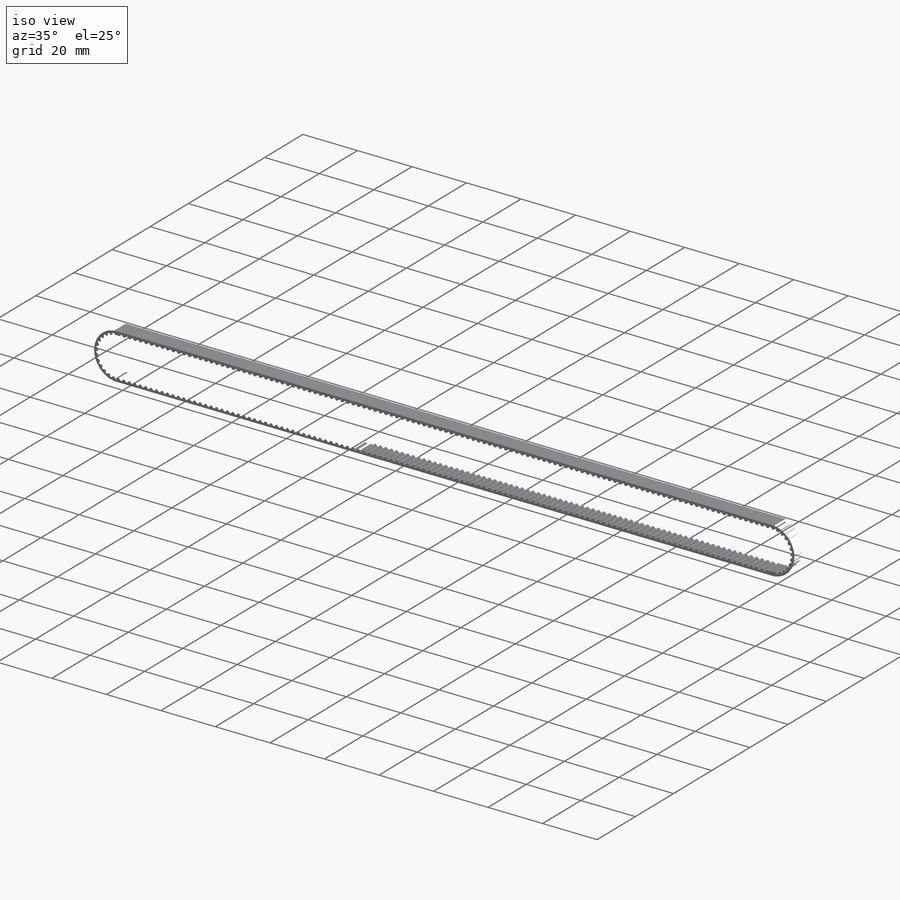
[diagram: iso view]
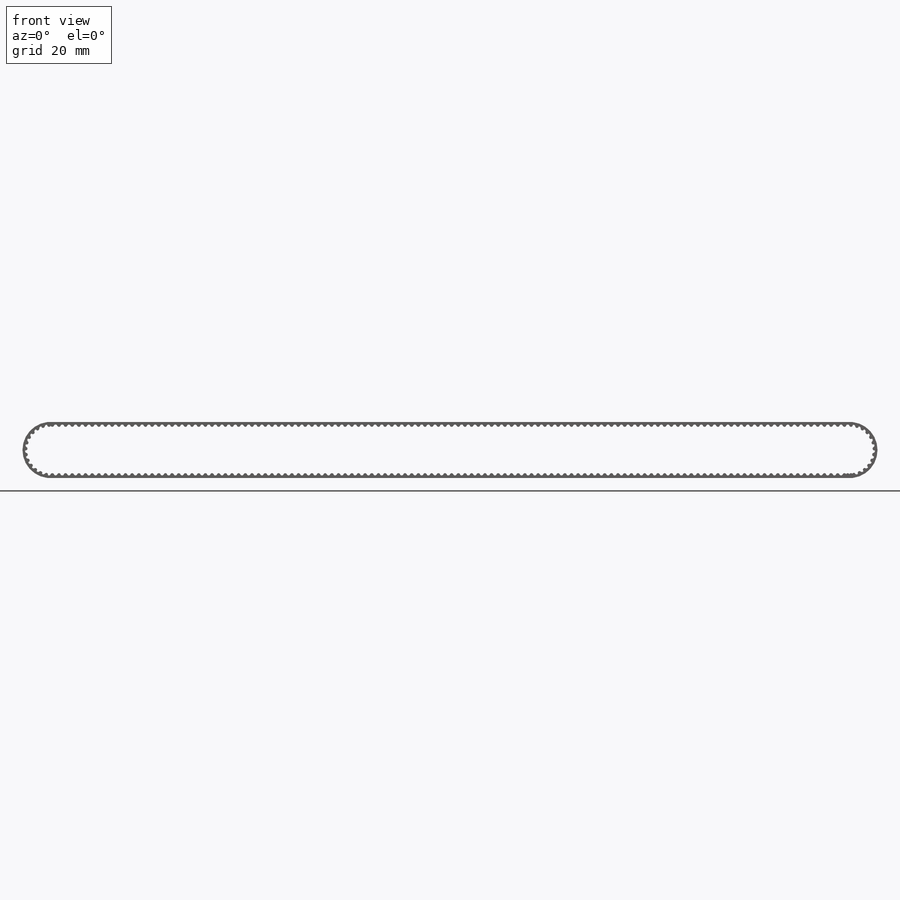
[diagram: front view]
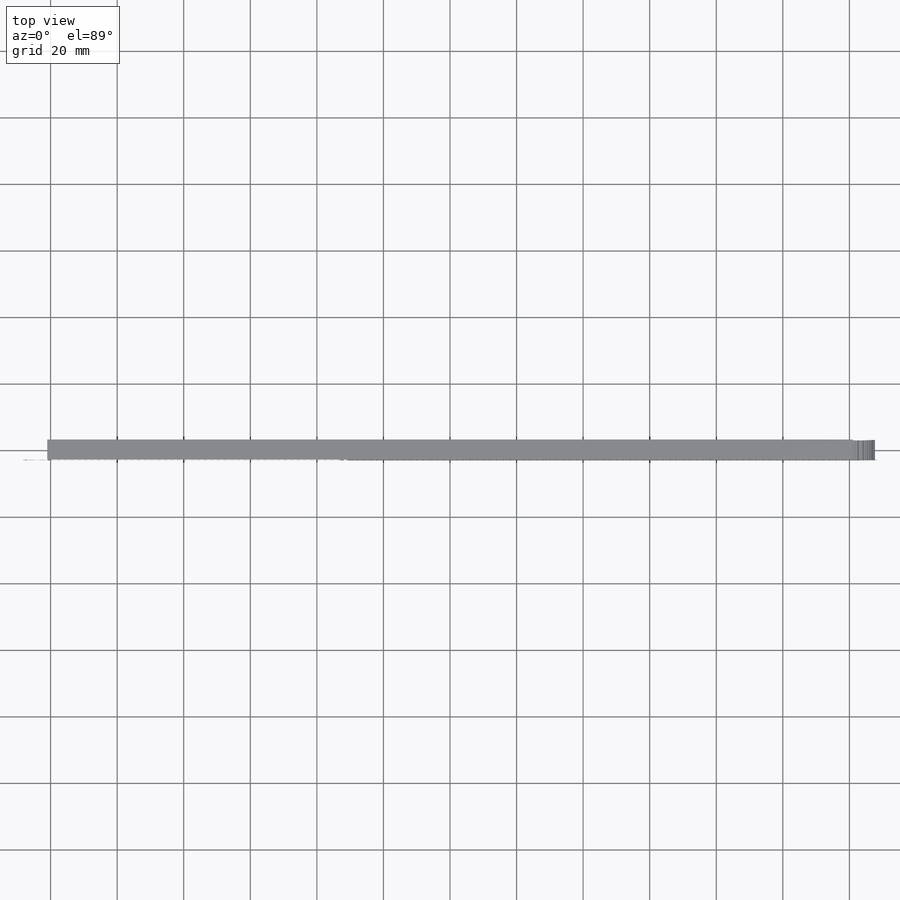
[diagram: top view]
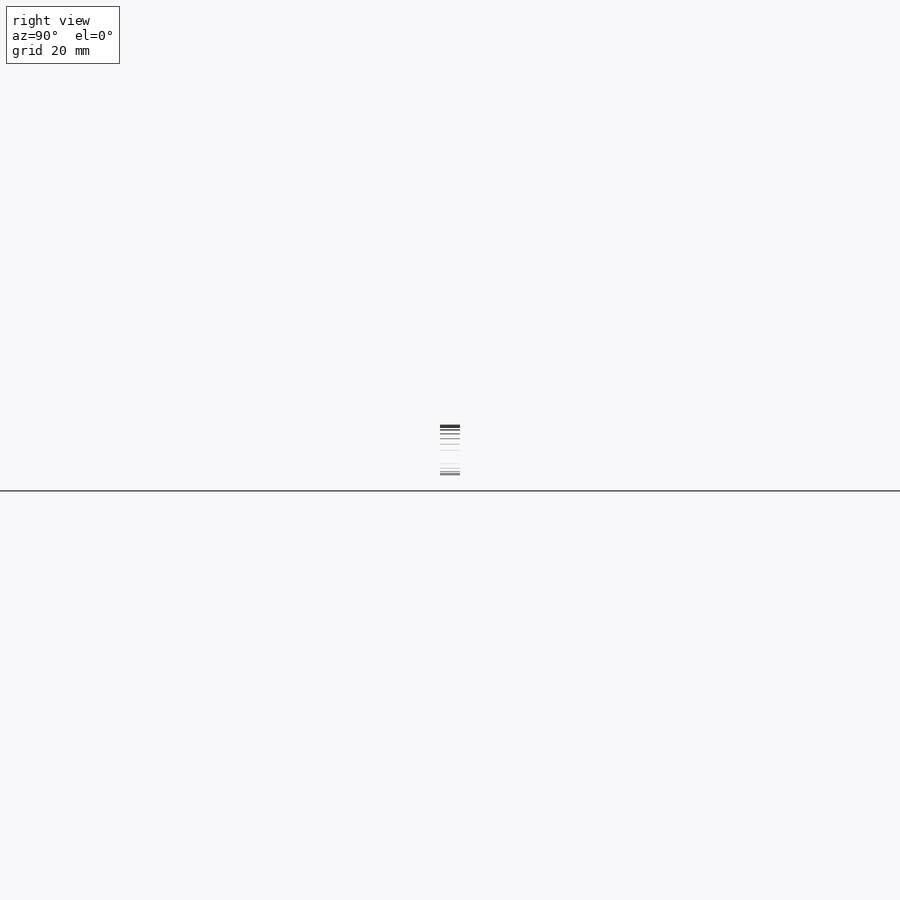
[diagram: right view]
SOLIDWORKS PART (.sldprt)
format: sldprt  version: not decoded by parser v0  size: 772,096 bytes
history: native  units: mm
features: plane x4, sketch x2, extrude x2, mirror x2, material x1, pattern_circular x1, pattern_linear x1 (+10 scaffold rows collapsed)
feature tree (23):
  scaffold x10  (default folders/planes/origin — collapsed)
  material  "Material <not specified>"
  plane  "Alzado"
  plane  "Planta"
  plane  "Vista lateral"
  sketch  "Croquis3"  dims[c1.D3=0.7mm c1.D4=~0.538516mm c1.D1=2.0mm c1.D2=1.1mm c2.D3=7.3mm c2.D4=0.4mm c2.D5=1.1mm]
  extrude  "Saliente-Extruir1"  Depth=3mm
  pattern_circular  "MatrizC3"  Count=14 Angle=180deg
  pattern_linear  "MatrizL2"  Spacing1=2mm Spacing2=2mm  [1 undecoded]
  mirror  "Simetría2"
  plane  "Plano1"
  mirror  "Simetría6"
  sketch  "Croquis10"  dims[D1=0.8mm]
  extrude  "Saliente-Extruir2"  Depth=3mm
decode coverage: 6 of 8 modeling features carry decoded parameters
note: ~ marks probable driven/reference dimensions
note: 1 parameter value undecoded
note: suppression state not decoded; provenance and decode notes live in map.json
